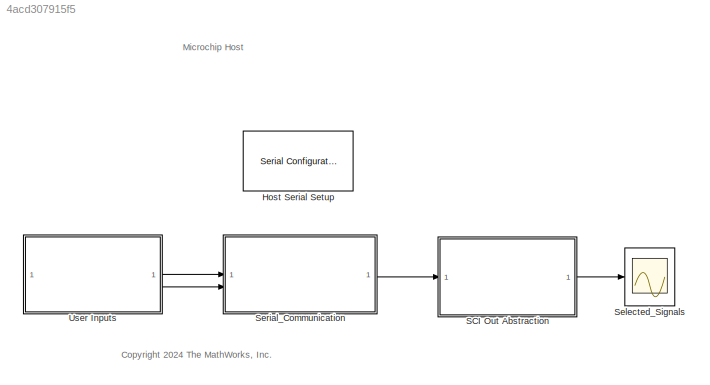
MODEL slx_4acd307915f5
KIND model
CONFIG AbsTol = auto
CONFIG EnableMultiTasking = on
CONFIG FixedStep = auto
CONFIG MaxStep = auto
CONFIG MinStep = auto
CONFIG RelTol = 1e-3
CONFIG SampleTimeConstraint = Unconstrained
CONFIG SolverName = FixedStepDiscrete
CONFIG StartTime = 0.0
CONFIG StopTime = inf
BLOCK [Reference] Host Serial Setup  REF=instrumentseriallib/Serial Configuration
  Priority = -99
  SourceBlock = instrumentseriallib/Serial Configuration
  SourceType = system.SerialConfiguration
BLOCK [SubSystem] SCI Out Abstraction
  ReferencedSubsystem = SCIRXMotorSwapHost
BLOCK [Scope] Selected_Signals
  Floating = off
  NumInputPorts = 1
  ScopeSpecificationString = Simulink.scopes.TimeScopeBlockCfg('CurrentConfiguration', extmgr.ConfigurationSet(extmgr.Configuration('Core','General UI',true),extmgr.Configuration('Core','Source UI',true),extmgr.Configuration('Sources','WiredSimulink',true,'DataLoggingVariableName','Results_HW','DataLoggingSaveFormat','StructureWithTime','DataLogging',true),extmgr.Configuration('Visuals','Time Domain',true,'InputProcessing','F...<+1991ch>
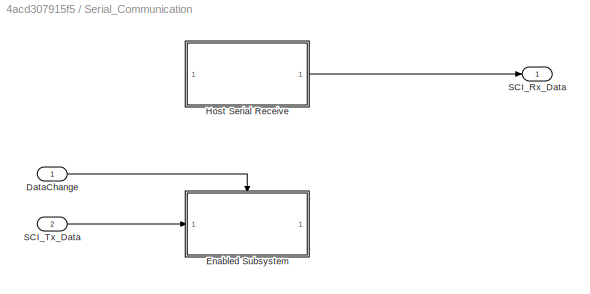
BLOCK [SubSystem] Serial_Communication
BLOCK [Inport] Serial_Communication/DataChange
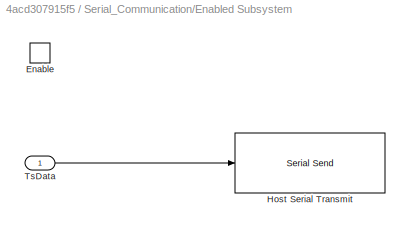
BLOCK [SubSystem] Serial_Communication/Enabled Subsystem
  TreatAsAtomicUnit = on
BLOCK [EnablePort] Serial_Communication/Enabled Subsystem/Enable
BLOCK [Reference] Serial_Communication/Enabled Subsystem/Host Serial Transmit  REF=instrumentseriallib/Serial Send
  SourceBlock = instrumentseriallib/Serial Send
  SourceType = system.SerialSend
BLOCK [Inport] Serial_Communication/Enabled Subsystem/TsData
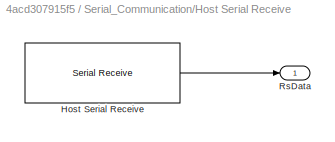
BLOCK [SubSystem] Serial_Communication/Host Serial Receive
BLOCK [Reference] Serial_Communication/Host Serial Receive/Host Serial Receive  REF=instrumentseriallib/Serial Receive
  SourceBlock = instrumentseriallib/Serial Receive
  SourceType = system.SerialReceive
BLOCK [Outport] Serial_Communication/Host Serial Receive/RsData
BLOCK [Outport] Serial_Communication/SCI_Rx_Data
BLOCK [Inport] Serial_Communication/SCI_Tx_Data
  Port = 2
BLOCK [SubSystem] User Inputs
  ReferencedSubsystem = UserInputsMotorSwapHost
ANNOTATION (root): Microchip Host
ANNOTATION (root): <copyright redacted>
LINE SCI Out Abstraction:1 -> Selected_Signals:1
LINE Serial_Communication/DataChange:1 -> Serial_Communication/Enabled Subsystem:enable
LINE Serial_Communication/Enabled Subsystem/TsData:1 -> Serial_Communication/Enabled Subsystem/Host Serial Transmit:1
LINE Serial_Communication/Host Serial Receive/Host Serial Receive:1 -> Serial_Communication/Host Serial Receive/RsData:1
LINE Serial_Communication/Host Serial Receive:1 -> Serial_Communication/SCI_Rx_Data:1
LINE Serial_Communication/SCI_Tx_Data:1 -> Serial_Communication/Enabled Subsystem:1
LINE Serial_Communication:1 -> SCI Out Abstraction:1
LINE User Inputs:1 -> Serial_Communication:1
LINE User Inputs:2 -> Serial_Communication:2
